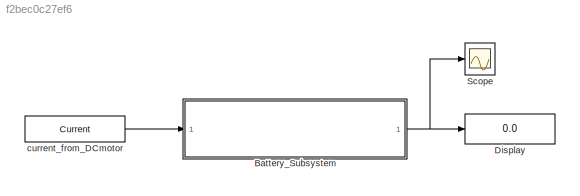
MODEL slx_f2bec0c27ef6
KIND model
CONFIG AbsTol = auto
CONFIG EnableMultiTasking = off
CONFIG FixedStep = auto
CONFIG InitFcn = Current =4.4; %A\ncapacity = 4400*10^-3; %Ah\nSOC_initial = 100;\nPolarization_Resistance = 300;\nInternal_Resistance= 90*10^-3;\nPolarization_Capacitance = 1*10^-7;\n\n\n
CONFIG MaxStep = auto
CONFIG MinStep = auto
CONFIG RelTol = 1e-3
CONFIG SampleTimeConstraint = Unconstrained
CONFIG Solver = VariableStepAuto
CONFIG SolverName = VariableStepAuto
CONFIG StartTime = 0.0
CONFIG StopTime = 25000
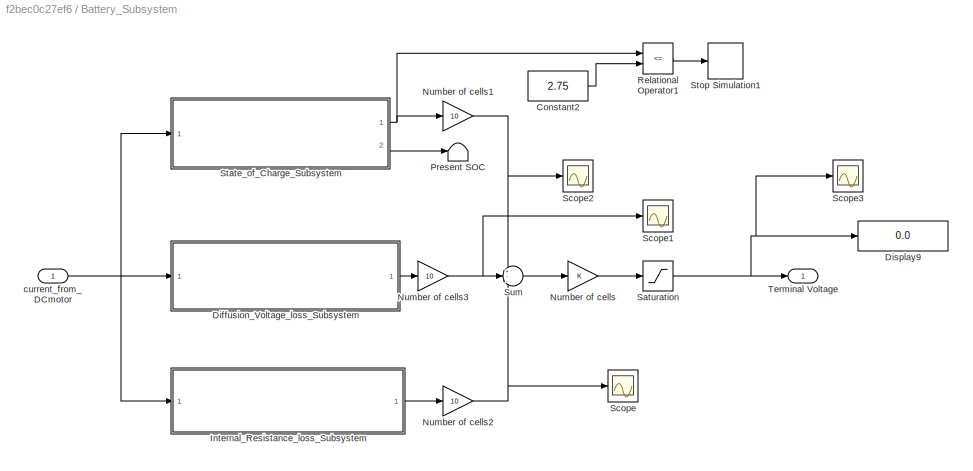
BLOCK [SubSystem] Battery_Subsystem
  Ports = [1, 1]
  RequestExecContextInheritance = off
BLOCK [Constant] Battery_Subsystem/Constant2
  Value = 2.75
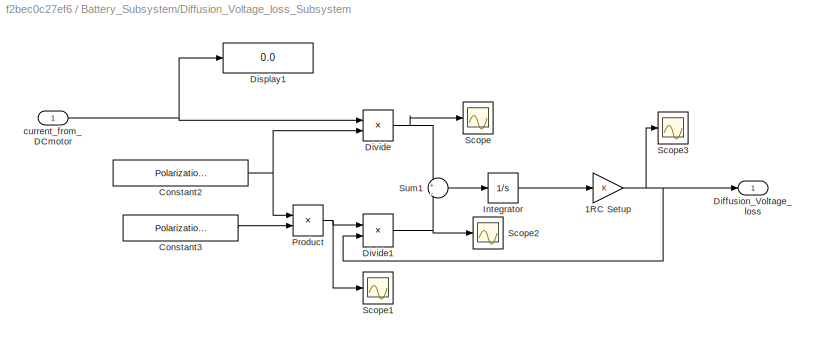
BLOCK [SubSystem] Battery_Subsystem/Diffusion_Voltage_loss_Subsystem
  Ports = [1, 1]
  RequestExecContextInheritance = off
BLOCK [Gain] Battery_Subsystem/Diffusion_Voltage_loss_Subsystem/1RC Setup
  OutDataTypeStr = Inherit: Inherit via internal rule
  ParamDataTypeStr = Inherit: Inherit via internal rule
  SaturateOnIntegerOverflow = off
BLOCK [Constant] Battery_Subsystem/Diffusion_Voltage_loss_Subsystem/Constant2
  SampleTime = -1
  Value = Polarization_Capacitance
BLOCK [Constant] Battery_Subsystem/Diffusion_Voltage_loss_Subsystem/Constant3
  SampleTime = -1
  Value = Polarization_Resistance
BLOCK [Outport] Battery_Subsystem/Diffusion_Voltage_loss_Subsystem/Diffusion_Voltage_loss
  IconDisplay = Port number
  VectorParamsAs1DForOutWhenUnconnected = off
BLOCK [Display] Battery_Subsystem/Diffusion_Voltage_loss_Subsystem/Display1
  Decimation = 1
  Ports = [1]
BLOCK [Product] Battery_Subsystem/Diffusion_Voltage_loss_Subsystem/Divide
  InputSameDT = off
  Inputs = */
  OutDataTypeStr = Inherit: Inherit via internal rule
  Ports = [2, 1]
  RndMeth = Floor
  SaturateOnIntegerOverflow = off
BLOCK [Product] Battery_Subsystem/Diffusion_Voltage_loss_Subsystem/Divide1
  InputSameDT = off
  Inputs = /*
  OutDataTypeStr = Inherit: Inherit via internal rule
  Ports = [2, 1]
  RndMeth = Floor
  SaturateOnIntegerOverflow = off
BLOCK [Integrator] Battery_Subsystem/Diffusion_Voltage_loss_Subsystem/Integrator
  Ports = [1, 1]
BLOCK [Product] Battery_Subsystem/Diffusion_Voltage_loss_Subsystem/Product
  InputSameDT = off
  OutDataTypeStr = Inherit: Inherit via internal rule
  Ports = [2, 1]
  RndMeth = Floor
  SaturateOnIntegerOverflow = off
BLOCK [Scope] Battery_Subsystem/Diffusion_Voltage_loss_Subsystem/Scope
  Floating = off
  NumInputPorts = 1
  Ports = [1]
  ScopeSpecificationString = Simulink.scopes.TimeScopeBlockCfg('CurrentConfiguration', extmgr.ConfigurationSet(extmgr.Configuration('Core','General UI',true),extmgr.Configuration('Core','Source UI',true),extmgr.Configuration('Sources','WiredSimulink',true,'DataLoggingVariableName','ScopeData1'),extmgr.Configuration('Visuals','Time Domain',true,'SerializedDisplays',{struct('MinYLimReal','34000000.00000','MaxYLimReal','54000000...<+1419ch>
BLOCK [Scope] Battery_Subsystem/Diffusion_Voltage_loss_Subsystem/Scope1
  Floating = off
  NumInputPorts = 1
  Ports = [1]
  ScopeSpecificationString = Simulink.scopes.TimeScopeBlockCfg('CurrentConfiguration', extmgr.ConfigurationSet(extmgr.Configuration('Core','General UI',true),extmgr.Configuration('Core','Source UI',true),extmgr.Configuration('Sources','WiredSimulink',true,'DataLoggingVariableName','ScopeData2'),extmgr.Configuration('Visuals','Time Domain',true,'SerializedDisplays',{struct('MinYLimReal','0.00002','MaxYLimReal','0.00004','YLabe...<+1364ch>
BLOCK [Scope] Battery_Subsystem/Diffusion_Voltage_loss_Subsystem/Scope2
  Floating = off
  NumInputPorts = 1
  Ports = [1]
  ScopeSpecificationString = Simulink.scopes.TimeScopeBlockCfg('CurrentConfiguration', extmgr.ConfigurationSet(extmgr.Configuration('Core','General UI',true),extmgr.Configuration('Core','Source UI',true),extmgr.Configuration('Sources','WiredSimulink',true,'DataLoggingVariableName','ScopeData3'),extmgr.Configuration('Visuals','Time Domain',true,'SerializedDisplays',{struct('MinYLimReal','-5500295.46734','MaxYLimReal','49502659...<+1416ch>
BLOCK [Scope] Battery_Subsystem/Diffusion_Voltage_loss_Subsystem/Scope3
  Floating = off
  NumInputPorts = 1
  Ports = [1]
  ScopeSpecificationString = Simulink.scopes.TimeScopeBlockCfg('CurrentConfiguration', extmgr.ConfigurationSet(extmgr.Configuration('Core','General UI',true),extmgr.Configuration('Core','Source UI',true),extmgr.Configuration('Sources','WiredSimulink',true,'DataLoggingVariableName','ScopeData4'),extmgr.Configuration('Visuals','Time Domain',true,'SerializedDisplays',{struct('MinYLimReal','-165.00886','MaxYLimReal','1485.07978',...<+1386ch>
BLOCK [Sum] Battery_Subsystem/Diffusion_Voltage_loss_Subsystem/Sum1
  IconShape = round
  InputSameDT = off
  Inputs = +|-
  OutDataTypeStr = Inherit: Inherit via internal rule
  Ports = [2, 1]
  SaturateOnIntegerOverflow = off
BLOCK [Inport] Battery_Subsystem/Diffusion_Voltage_loss_Subsystem/current_from_DCmotor
  IconDisplay = Port number
BLOCK [Display] Battery_Subsystem/Display9
  Decimation = 1
  Ports = [1]
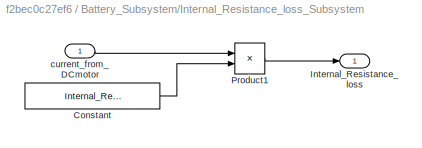
BLOCK [SubSystem] Battery_Subsystem/Internal_Resistance_loss_Subsystem
  Ports = [1, 1]
  RequestExecContextInheritance = off
BLOCK [Constant] Battery_Subsystem/Internal_Resistance_loss_Subsystem/Constant
  SampleTime = -1
  Value = Internal_Resistance
BLOCK [Outport] Battery_Subsystem/Internal_Resistance_loss_Subsystem/Internal_Resistance_loss
  IconDisplay = Port number
  VectorParamsAs1DForOutWhenUnconnected = off
BLOCK [Product] Battery_Subsystem/Internal_Resistance_loss_Subsystem/Product1
  InputSameDT = off
  OutDataTypeStr = Inherit: Inherit via internal rule
  Ports = [2, 1]
  RndMeth = Floor
  SaturateOnIntegerOverflow = off
BLOCK [Inport] Battery_Subsystem/Internal_Resistance_loss_Subsystem/current_from_DCmotor
  IconDisplay = Port number
BLOCK [Gain] Battery_Subsystem/Number of cells
  OutDataTypeStr = Inherit: Inherit via internal rule
  ParamDataTypeStr = Inherit: Inherit via internal rule
  SaturateOnIntegerOverflow = off
BLOCK [Gain] Battery_Subsystem/Number of cells1
  Gain = 10
  OutDataTypeStr = Inherit: Inherit via internal rule
  ParamDataTypeStr = Inherit: Inherit via internal rule
  SaturateOnIntegerOverflow = off
BLOCK [Gain] Battery_Subsystem/Number of cells2
  Gain = 10
  OutDataTypeStr = Inherit: Inherit via internal rule
  ParamDataTypeStr = Inherit: Inherit via internal rule
  SaturateOnIntegerOverflow = off
BLOCK [Gain] Battery_Subsystem/Number of cells3
  Gain = 10
  OutDataTypeStr = Inherit: Inherit via internal rule
  ParamDataTypeStr = Inherit: Inherit via internal rule
  SaturateOnIntegerOverflow = off
BLOCK [Terminator] Battery_Subsystem/Present SOC
BLOCK [RelationalOperator] Battery_Subsystem/Relational Operator1
  InputSameDT = off
  Operator = <=
  OutDataTypeStr = boolean
  Ports = [2, 1]
  RndMeth = Simplest
BLOCK [Saturate] Battery_Subsystem/Saturation
  InputPortMap = u0
  LowerLimit = 0
  Ports = [1, 1]
  UpperLimit = inf
BLOCK [Scope] Battery_Subsystem/Scope
  Floating = off
  NumInputPorts = 1
  Ports = [1]
  ScopeSpecificationString = Simulink.scopes.TimeScopeBlockCfg('CurrentConfiguration', extmgr.ConfigurationSet(extmgr.Configuration('Core','General UI',true),extmgr.Configuration('Core','Source UI',true),extmgr.Configuration('Sources','WiredSimulink',true,'DataLoggingVariableName','ScopeData1'),extmgr.Configuration('Visuals','Time Domain',true,'SerializedDisplays',{struct('MinYLimReal','2.96','MaxYLimReal','4.96','YLabelReal'...<+1409ch>
BLOCK [Scope] Battery_Subsystem/Scope1
  Floating = off
  NumInputPorts = 1
  Ports = [1]
  ScopeSpecificationString = Simulink.scopes.TimeScopeBlockCfg('CurrentConfiguration', extmgr.ConfigurationSet(extmgr.Configuration('Core','General UI',true),extmgr.Configuration('Core','Source UI',true),extmgr.Configuration('Sources','WiredSimulink',true,'DataLoggingVariableName','ScopeData2'),extmgr.Configuration('Visuals','Time Domain',true,'SerializedDisplays',{struct('MinYLimReal','-1649858.25227','MaxYLimReal','14848724...<+1469ch>
BLOCK [Scope] Battery_Subsystem/Scope2
  Floating = off
  NumInputPorts = 1
  Ports = [1]
  ScopeSpecificationString = Simulink.scopes.TimeScopeBlockCfg('CurrentConfiguration', extmgr.ConfigurationSet(extmgr.Configuration('Core','General UI',true),extmgr.Configuration('Core','Source UI',true),extmgr.Configuration('Sources','WiredSimulink',true,'DataLoggingVariableName','ScopeData3'),extmgr.Configuration('Visuals','Time Domain',true,'SerializedDisplays',{struct('MinYLimReal','39.95','MaxYLimReal','41.45','YLabelRea...<+1411ch>
BLOCK [Scope] Battery_Subsystem/Scope3
  Floating = off
  NumInputPorts = 1
  Ports = [1]
  ScopeSpecificationString = Simulink.scopes.TimeScopeBlockCfg('CurrentConfiguration', extmgr.ConfigurationSet(extmgr.Configuration('Core','General UI',true),extmgr.Configuration('Core','Source UI',true),extmgr.Configuration('Sources','WiredSimulink',true,'DataLoggingVariableName','ScopeData6'),extmgr.Configuration('Visuals','Time Domain',true,'SerializedDisplays',{struct('MinYLimReal','-1.4152','MaxYLimReal','38.7374','YLabe...<+1438ch>
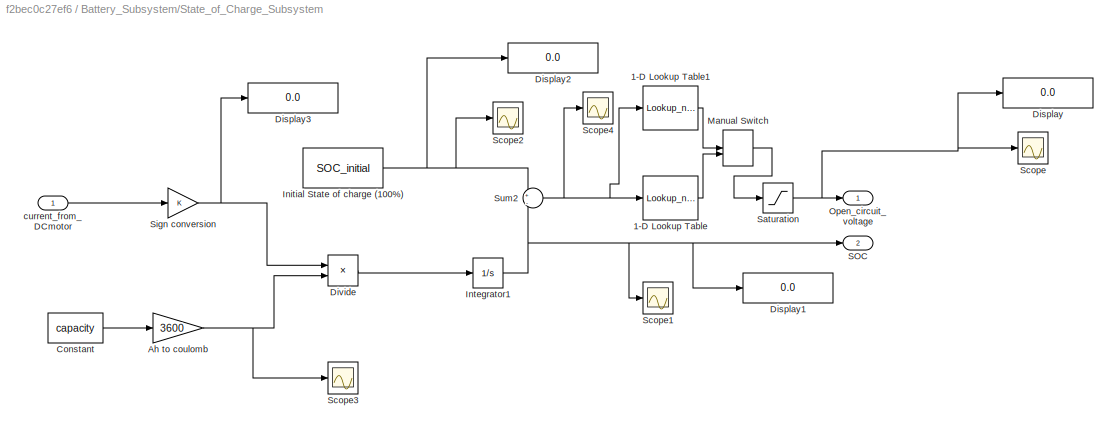
BLOCK [SubSystem] Battery_Subsystem/State_of_Charge_Subsystem 
  Ports = [1, 2]
  RequestExecContextInheritance = off
BLOCK [Lookup_n-D] Battery_Subsystem/State_of_Charge_Subsystem /1-D Lookup Table
  BreakpointsForDimension1 = [10 12 15 20 30 45 60 75 85 95 100]
  InternalRulePriority = Speed
  NumberOfTableDimensions = 1
  Ports = [1, 1]
  RndMeth = Simplest
  Table = [2.75\n2.964\n3.233\n3.417\n3.65\n3.7\n3.789\n3.9269\n4.017\n4.147\n4.2\n]
BLOCK [Lookup_n-D] Battery_Subsystem/State_of_Charge_Subsystem /1-D Lookup Table1
  BreakpointsForDimension1 = [-0.02\n0.08\n0.18\n0.28\n0.38\n0.48\n0.58\n0.68\n0.78\n0.88\n0.98\n1.08\n1.18\n1.28\n1.38\n1.48\n1.58\n1.68\n1.78\n1.88\n1.98\n2.08\n2.18\n2.28\n2.38\n2.48\n2.58\n2.68\n2.78\n2.88\n2.98\n3.08\n3.18\n3.28\n3.38\n3.48\n3.58\n3.68\n3.78\n3.88\n3.98\n4.08\n4.18\n4.28\n4.38\n4.48\n4.58\n4.68\n4.78\n4.88\n4.98\n5.08\n5.18\n5.28\n5.38\n5.48\n5.58\n5.68\n5.78\n5.88\n5.98\n6.08\n6.19\n6.29\n6.39\n6.49\n6.59\n6.69\n6.79\n6.89\n6.99\n7.09\n7.19\n7.29\n7.39\n7.49\n7.59\n7.69\n7.79\n7.8...<+5502ch>
  InternalRulePriority = Speed
  NumberOfTableDimensions = 1
  Ports = [1, 1]
  RndMeth = Simplest
  Table = [2.69\n2.72\n2.74\n2.76\n2.79\n2.81\n2.83\n2.85\n2.87\n2.89\n2.91\n2.93\n2.95\n2.96\n2.98\n3.00\n3.01\n3.03\n3.04\n3.06\n3.07\n3.08\n3.10\n3.11\n3.12\n3.13\n3.14\n3.15\n3.16\n3.17\n3.18\n3.19\n3.20\n3.21\n3.22\n3.22\n3.23\n3.24\n3.24\n3.25\n3.26\n3.26\n3.27\n3.27\n3.28\n3.28\n3.29\n3.29\n3.29\n3.30\n3.30\n3.31\n3.31\n3.31\n3.31\n3.32\n3.32\n3.32\n3.32\n3.33\n3.33\n3.33\n3.33\n3.33\n3.33\n3.34\n3.34\n3.34\n3.34\n3.34\n3.34\n3.34\n3.35\n3.35\n3.35\n3.35\n3.35\n3.35\n3.35\n3.36...<+4602ch>
BLOCK [Gain] Battery_Subsystem/State_of_Charge_Subsystem /Ah to coulomb
  Gain = 3600
  OutDataTypeStr = Inherit: Inherit via internal rule
  ParamDataTypeStr = Inherit: Inherit via internal rule
  SaturateOnIntegerOverflow = off
BLOCK [Constant] Battery_Subsystem/State_of_Charge_Subsystem /Constant
  SampleTime = -1
  Value = capacity
BLOCK [Display] Battery_Subsystem/State_of_Charge_Subsystem /Display
  Decimation = 1
  Ports = [1]
BLOCK [Display] Battery_Subsystem/State_of_Charge_Subsystem /Display1
  Decimation = 1
  Ports = [1]
BLOCK [Display] Battery_Subsystem/State_of_Charge_Subsystem /Display2
  Decimation = 1
  Ports = [1]
BLOCK [Display] Battery_Subsystem/State_of_Charge_Subsystem /Display3
  Decimation = 1
  Ports = [1]
BLOCK [Product] Battery_Subsystem/State_of_Charge_Subsystem /Divide
  InputSameDT = off
  Inputs = */
  OutDataTypeStr = Inherit: Inherit via internal rule
  Ports = [2, 1]
  RndMeth = Floor
  SaturateOnIntegerOverflow = off
BLOCK [Constant] Battery_Subsystem/State_of_Charge_Subsystem /Initial State of charge (100%)
  SampleTime = -1
  Value = SOC_initial
BLOCK [Integrator] Battery_Subsystem/State_of_Charge_Subsystem /Integrator1
  Ports = [1, 1]
BLOCK [ManualSwitch] Battery_Subsystem/State_of_Charge_Subsystem /Manual Switch
BLOCK [Outport] Battery_Subsystem/State_of_Charge_Subsystem /Open_circuit_voltage
  IconDisplay = Port number
  VectorParamsAs1DForOutWhenUnconnected = off
BLOCK [Outport] Battery_Subsystem/State_of_Charge_Subsystem /SOC
  IconDisplay = Port number
  Port = 2
  VectorParamsAs1DForOutWhenUnconnected = off
BLOCK [Saturate] Battery_Subsystem/State_of_Charge_Subsystem /Saturation
  InputPortMap = u0
  LowerLimit = 0
  Ports = [1, 1]
  UpperLimit = inf
BLOCK [Scope] Battery_Subsystem/State_of_Charge_Subsystem /Scope
  Floating = off
  NumInputPorts = 1
  Ports = [1]
  ScopeSpecificationString = Simulink.scopes.TimeScopeBlockCfg('CurrentConfiguration', extmgr.ConfigurationSet(extmgr.Configuration('Core','General UI',true),extmgr.Configuration('Core','Source UI',true),extmgr.Configuration('Sources','WiredSimulink',true,'DataLoggingVariableName','ScopeData1'),extmgr.Configuration('Visuals','Time Domain',true,'SerializedDisplays',{struct('MinYLimReal','3.995','MaxYLimReal','4.145','YLabelRea...<+1451ch>
BLOCK [Scope] Battery_Subsystem/State_of_Charge_Subsystem /Scope1
  Floating = off
  NumInputPorts = 1
  Ports = [1]
  ScopeSpecificationString = Simulink.scopes.TimeScopeBlockCfg('CurrentConfiguration', extmgr.ConfigurationSet(extmgr.Configuration('Core','General UI',true),extmgr.Configuration('Core','Source UI',true),extmgr.Configuration('Sources','WiredSimulink',true,'DataLoggingVariableName','ScopeData2'),extmgr.Configuration('Visuals','Time Domain',true,'SerializedDisplays',{struct('MinYLimReal','-0.86806','MaxYLimReal','7.8125','YLabe...<+1466ch>
BLOCK [Scope] Battery_Subsystem/State_of_Charge_Subsystem /Scope2
  Floating = off
  NumInputPorts = 1
  Ports = [1]
  ScopeSpecificationString = Simulink.scopes.TimeScopeBlockCfg('CurrentConfiguration', extmgr.ConfigurationSet(extmgr.Configuration('Core','General UI',true),extmgr.Configuration('Core','Source UI',true),extmgr.Configuration('Sources','WiredSimulink',true,'DataLoggingVariableName','ScopeData3'),extmgr.Configuration('Visuals','Time Domain',true,'SerializedDisplays',{struct('MinYLimReal','90.00000','MaxYLimReal','110.00000','YL...<+1451ch>
BLOCK [Scope] Battery_Subsystem/State_of_Charge_Subsystem /Scope3
  Floating = off
  NumInputPorts = 1
  Ports = [1]
  ScopeSpecificationString = Simulink.scopes.TimeScopeBlockCfg('CurrentConfiguration', extmgr.ConfigurationSet(extmgr.Configuration('Core','General UI',true),extmgr.Configuration('Core','Source UI',true),extmgr.Configuration('Sources','WiredSimulink',true,'DataLoggingVariableName','ScopeData4'),extmgr.Configuration('Visuals','Time Domain',true,'SerializedDisplays',{struct('MinYLimReal','5840.00000','MaxYLimReal','25840.00000'...<+1458ch>
BLOCK [Scope] Battery_Subsystem/State_of_Charge_Subsystem /Scope4
  Floating = off
  NumInputPorts = 1
  Ports = [1]
  ScopeSpecificationString = Simulink.scopes.TimeScopeBlockCfg('CurrentConfiguration', extmgr.ConfigurationSet(extmgr.Configuration('Core','General UI',true),extmgr.Configuration('Core','Source UI',true),extmgr.Configuration('Sources','WiredSimulink',true,'DataLoggingVariableName','ScopeData7'),extmgr.Configuration('Visuals','Time Domain',true,'SerializedDisplays',{struct('MinYLimReal','92.1875','MaxYLimReal','100.86806','YLa...<+1469ch>
BLOCK [Gain] Battery_Subsystem/State_of_Charge_Subsystem /Sign conversion
  OutDataTypeStr = Inherit: Inherit via internal rule
  ParamDataTypeStr = Inherit: Inherit via internal rule
  SaturateOnIntegerOverflow = off
BLOCK [Sum] Battery_Subsystem/State_of_Charge_Subsystem /Sum2
  IconShape = round
  InputSameDT = off
  Inputs = +|-
  OutDataTypeStr = Inherit: Inherit via internal rule
  Ports = [2, 1]
  SaturateOnIntegerOverflow = off
BLOCK [Inport] Battery_Subsystem/State_of_Charge_Subsystem /current_from_DCmotor
  IconDisplay = Port number
BLOCK [Stop] Battery_Subsystem/Stop Simulation1
BLOCK [Sum] Battery_Subsystem/Sum
  IconShape = round
  InputSameDT = off
  Inputs = +--
  OutDataTypeStr = Inherit: Inherit via internal rule
  Ports = [3, 1]
  SaturateOnIntegerOverflow = off
BLOCK [Outport] Battery_Subsystem/Terminal Voltage
  IconDisplay = Port number
  VectorParamsAs1DForOutWhenUnconnected = off
BLOCK [Inport] Battery_Subsystem/current_from_DCmotor
  IconDisplay = Port number
BLOCK [Display] Display
  Decimation = 1
  Ports = [1]
BLOCK [Scope] Scope
  Floating = off
  NumInputPorts = 1
  Ports = [1]
  ScopeSpecificationString = Simulink.scopes.TimeScopeBlockCfg('CurrentConfiguration', extmgr.ConfigurationSet(extmgr.Configuration('Core','General UI',true),extmgr.Configuration('Core','Source UI',true),extmgr.Configuration('Sources','WiredSimulink',true),extmgr.Configuration('Visuals','Time Domain',true,'SerializedDisplays',{struct('MinYLimReal','-0.29525','MaxYLimReal','2.75725','YLabelReal','','MinYLimMag','0.00000','MaxY...<+1408ch>
BLOCK [Constant] current_from_DCmotor
  SampleTime = -1
  Value = Current
LINE Battery_Subsystem/Constant2:1 -> Battery_Subsystem/Relational Operator1:2
NET Battery_Subsystem/Diffusion_Voltage_loss_Subsystem/1RC Setup:1 -> Battery_Subsystem/Diffusion_Voltage_loss_Subsystem/Diffusion_Voltage_loss:1, Battery_Subsystem/Diffusion_Voltage_loss_Subsystem/Divide1:2, Battery_Subsystem/Diffusion_Voltage_loss_Subsystem/Scope3:1
NET Battery_Subsystem/Diffusion_Voltage_loss_Subsystem/Constant2:1 -> Battery_Subsystem/Diffusion_Voltage_loss_Subsystem/Divide:2, Battery_Subsystem/Diffusion_Voltage_loss_Subsystem/Product:1
LINE Battery_Subsystem/Diffusion_Voltage_loss_Subsystem/Constant3:1 -> Battery_Subsystem/Diffusion_Voltage_loss_Subsystem/Product:2
NET Battery_Subsystem/Diffusion_Voltage_loss_Subsystem/Divide1:1 -> Battery_Subsystem/Diffusion_Voltage_loss_Subsystem/Scope2:1, Battery_Subsystem/Diffusion_Voltage_loss_Subsystem/Sum1:2
NET Battery_Subsystem/Diffusion_Voltage_loss_Subsystem/Divide:1 -> Battery_Subsystem/Diffusion_Voltage_loss_Subsystem/Scope:1, Battery_Subsystem/Diffusion_Voltage_loss_Subsystem/Sum1:1
LINE Battery_Subsystem/Diffusion_Voltage_loss_Subsystem/Integrator:1 -> Battery_Subsystem/Diffusion_Voltage_loss_Subsystem/1RC Setup:1
NET Battery_Subsystem/Diffusion_Voltage_loss_Subsystem/Product:1 -> Battery_Subsystem/Diffusion_Voltage_loss_Subsystem/Divide1:1, Battery_Subsystem/Diffusion_Voltage_loss_Subsystem/Scope1:1
LINE Battery_Subsystem/Diffusion_Voltage_loss_Subsystem/Sum1:1 -> Battery_Subsystem/Diffusion_Voltage_loss_Subsystem/Integrator:1
NET Battery_Subsystem/Diffusion_Voltage_loss_Subsystem/current_from_DCmotor:1 -> Battery_Subsystem/Diffusion_Voltage_loss_Subsystem/Display1:1, Battery_Subsystem/Diffusion_Voltage_loss_Subsystem/Divide:1
LINE Battery_Subsystem/Diffusion_Voltage_loss_Subsystem:1 -> Battery_Subsystem/Number of cells3:1
LINE Battery_Subsystem/Internal_Resistance_loss_Subsystem/Constant:1 -> Battery_Subsystem/Internal_Resistance_loss_Subsystem/Product1:2
LINE Battery_Subsystem/Internal_Resistance_loss_Subsystem/Product1:1 -> Battery_Subsystem/Internal_Resistance_loss_Subsystem/Internal_Resistance_loss:1
LINE Battery_Subsystem/Internal_Resistance_loss_Subsystem/current_from_DCmotor:1 -> Battery_Subsystem/Internal_Resistance_loss_Subsystem/Product1:1
LINE Battery_Subsystem/Internal_Resistance_loss_Subsystem:1 -> Battery_Subsystem/Number of cells2:1
NET Battery_Subsystem/Number of cells1:1 -> Battery_Subsystem/Scope2:1, Battery_Subsystem/Sum:1
NET Battery_Subsystem/Number of cells2:1 -> Battery_Subsystem/Scope:1, Battery_Subsystem/Sum:3
NET Battery_Subsystem/Number of cells3:1 -> Battery_Subsystem/Scope1:1, Battery_Subsystem/Sum:2
LINE Battery_Subsystem/Number of cells:1 -> Battery_Subsystem/Saturation:1
LINE Battery_Subsystem/Relational Operator1:1 -> Battery_Subsystem/Stop Simulation1:1
NET Battery_Subsystem/Saturation:1 -> Battery_Subsystem/Display9:1, Battery_Subsystem/Scope3:1, Battery_Subsystem/Terminal Voltage:1
LINE Battery_Subsystem/State_of_Charge_Subsystem /1-D Lookup Table1:1 -> Battery_Subsystem/State_of_Charge_Subsystem /Manual Switch:1
LINE Battery_Subsystem/State_of_Charge_Subsystem /1-D Lookup Table:1 -> Battery_Subsystem/State_of_Charge_Subsystem /Manual Switch:2
NET Battery_Subsystem/State_of_Charge_Subsystem /Ah to coulomb:1 -> Battery_Subsystem/State_of_Charge_Subsystem /Divide:2, Battery_Subsystem/State_of_Charge_Subsystem /Scope3:1
LINE Battery_Subsystem/State_of_Charge_Subsystem /Constant:1 -> Battery_Subsystem/State_of_Charge_Subsystem /Ah to coulomb:1
LINE Battery_Subsystem/State_of_Charge_Subsystem /Divide:1 -> Battery_Subsystem/State_of_Charge_Subsystem /Integrator1:1
NET Battery_Subsystem/State_of_Charge_Subsystem /Initial State of charge (100%):1 -> Battery_Subsystem/State_of_Charge_Subsystem /Display2:1, Battery_Subsystem/State_of_Charge_Subsystem /Scope2:1, Battery_Subsystem/State_of_Charge_Subsystem /Sum2:1
NET Battery_Subsystem/State_of_Charge_Subsystem /Integrator1:1 -> Battery_Subsystem/State_of_Charge_Subsystem /Display1:1, Battery_Subsystem/State_of_Charge_Subsystem /SOC:1, Battery_Subsystem/State_of_Charge_Subsystem /Scope1:1, Battery_Subsystem/State_of_Charge_Subsystem /Sum2:2
LINE Battery_Subsystem/State_of_Charge_Subsystem /Manual Switch:1 -> Battery_Subsystem/State_of_Charge_Subsystem /Saturation:1
NET Battery_Subsystem/State_of_Charge_Subsystem /Saturation:1 -> Battery_Subsystem/State_of_Charge_Subsystem /Display:1, Battery_Subsystem/State_of_Charge_Subsystem /Open_circuit_voltage:1, Battery_Subsystem/State_of_Charge_Subsystem /Scope:1
NET Battery_Subsystem/State_of_Charge_Subsystem /Sign conversion:1 -> Battery_Subsystem/State_of_Charge_Subsystem /Display3:1, Battery_Subsystem/State_of_Charge_Subsystem /Divide:1
NET Battery_Subsystem/State_of_Charge_Subsystem /Sum2:1 -> Battery_Subsystem/State_of_Charge_Subsystem /1-D Lookup Table1:1, Battery_Subsystem/State_of_Charge_Subsystem /1-D Lookup Table:1, Battery_Subsystem/State_of_Charge_Subsystem /Scope4:1
LINE Battery_Subsystem/State_of_Charge_Subsystem /current_from_DCmotor:1 -> Battery_Subsystem/State_of_Charge_Subsystem /Sign conversion:1
NET Battery_Subsystem/State_of_Charge_Subsystem :1 -> Battery_Subsystem/Number of cells1:1, Battery_Subsystem/Relational Operator1:1
LINE Battery_Subsystem/State_of_Charge_Subsystem :2 -> Battery_Subsystem/Present SOC:1
LINE Battery_Subsystem/Sum:1 -> Battery_Subsystem/Number of cells:1
NET Battery_Subsystem/current_from_DCmotor:1 -> Battery_Subsystem/Diffusion_Voltage_loss_Subsystem:1, Battery_Subsystem/Internal_Resistance_loss_Subsystem:1, Battery_Subsystem/State_of_Charge_Subsystem :1
NET Battery_Subsystem:1 -> Display:1, Scope:1
LINE current_from_DCmotor:1 -> Battery_Subsystem:1
note: NET lines group one-source signal fan-out (src -> all destinations, sorted); 1:1 wires keep LINE
